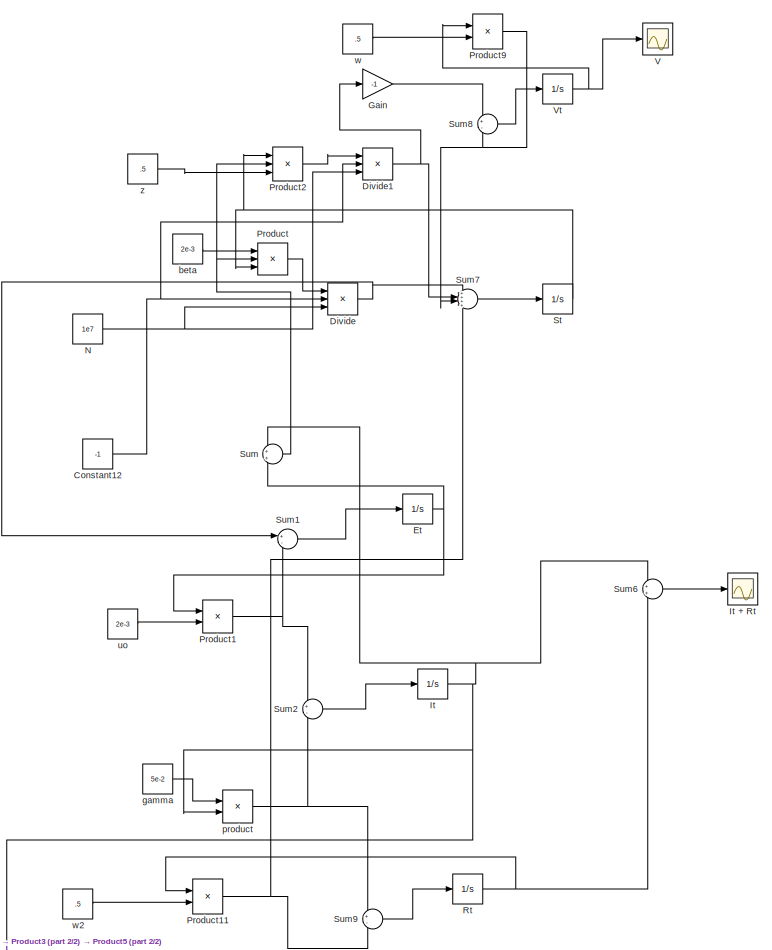
[diagram: root canvas - part 1/2, full width, top band]
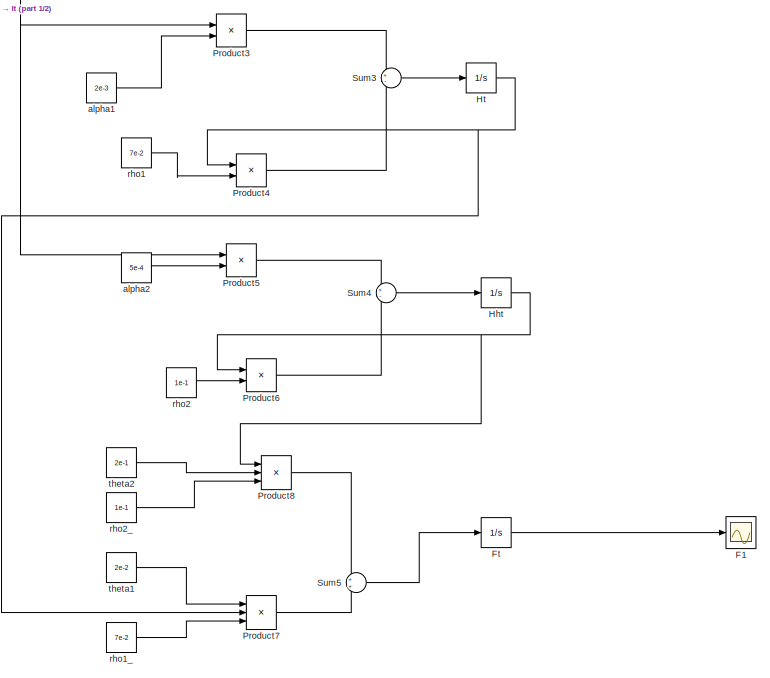
[diagram: root canvas - part 2/2, full width, bottom band]
MODEL slx_adbd907b5ca8
KIND model
CONFIG AbsTol = auto
CONFIG EnableMultiTasking = off
CONFIG FixedStep = auto
CONFIG MaxStep = auto
CONFIG MinStep = auto
CONFIG RelTol = 1e-3
CONFIG SampleTimeConstraint = Unconstrained
CONFIG SolverName = VariableStepAuto
CONFIG StartTime = 0.0
CONFIG StopTime = 30
BLOCK [Constant] Constant12
  Value = -1
BLOCK [Product] Divide
  Inputs = **/
BLOCK [Product] Divide1
  Inputs = **/
BLOCK [Integrator] Et
  InitialCondition = 6e5
BLOCK [Scope] F1
  Floating = off
  NumInputPorts = 1
  ScopeSpecificationString = Simulink.scopes.TimeScopeBlockCfg('CurrentConfiguration', extmgr.ConfigurationSet(extmgr.Configuration('Core','General UI',true,'FigureColor',[1 1 1]),extmgr.Configuration('Core','Source UI',true),extmgr.Configuration('Sources','WiredSimulink',true,'DataLoggingVariableName','ScopeData1'),extmgr.Configuration('Visuals','Time Domain',true,'SerializedDisplays',{struct('MinYLimReal','6484.64879','MaxY...<+1667ch>
BLOCK [Integrator] Ft
  InitialCondition = 6.5e3
BLOCK [Gain] Gain
  Gain = -1
BLOCK [Integrator] Hht
  InitialCondition = 188
BLOCK [Integrator] Ht
  InitialCondition = 7e2
BLOCK [Integrator] It
  InitialCondition = 3e4
BLOCK [Scope] It + Rt
  Floating = off
  NumInputPorts = 1
  ScopeSpecificationString = Simulink.scopes.TimeScopeBlockCfg('CurrentConfiguration', extmgr.ConfigurationSet(extmgr.Configuration('Core','General UI',true,'FigureColor',[1 1 1]),extmgr.Configuration('Core','Source UI',true),extmgr.Configuration('Sources','WiredSimulink',true),extmgr.Configuration('Visuals','Time Domain',true,'SerializedDisplays',{struct('MinYLimReal','255752.47104','MaxYLimReal','298227.76063','YLabelReal',...<+1686ch>
BLOCK [Constant] N
  Value = 1e7
BLOCK [Product] Product
  Inputs = 3
BLOCK [Product] Product1
BLOCK [Product] Product11
BLOCK [Product] Product2
  Inputs = 3
BLOCK [Product] Product3
BLOCK [Product] Product4
BLOCK [Product] Product5
BLOCK [Product] Product6
BLOCK [Product] Product7
  Inputs = 3
BLOCK [Product] Product8
  Inputs = 3
BLOCK [Product] Product9
BLOCK [Integrator] Rt
  InitialCondition = 2.3e5
BLOCK [Integrator] St
  InitialCondition = 9e6
BLOCK [Sum] Sum
BLOCK [Sum] Sum1
  Inputs = +-
BLOCK [Sum] Sum2
  Inputs = +-
BLOCK [Sum] Sum3
  Inputs = +-
BLOCK [Sum] Sum4
  Inputs = +-
BLOCK [Sum] Sum5
BLOCK [Sum] Sum6
BLOCK [Sum] Sum7
  Inputs = ++++
BLOCK [Sum] Sum8
  Inputs = +-
BLOCK [Sum] Sum9
  Inputs = +-
BLOCK [Scope] V
  Floating = off
  NumInputPorts = 1
  ScopeSpecificationString = Simulink.scopes.TimeScopeBlockCfg('CurrentConfiguration', extmgr.ConfigurationSet(extmgr.Configuration('Core','General UI',true,'FigureColor',[1 1 1]),extmgr.Configuration('Core','Source UI',true),extmgr.Configuration('Sources','WiredSimulink',true,'DataLoggingVariableName','ScopeData1'),extmgr.Configuration('Visuals','Time Domain',true,'SerializedDisplays',{struct('MinYLimReal','255752.47104','Ma...<+1725ch>
BLOCK [Integrator] Vt
  InitialCondition = 9e6
BLOCK [Constant] alpha1
  Value = 2e-3
BLOCK [Constant] alpha2
  Value = 5e-4
BLOCK [Constant] beta
  Value = 2e-3
BLOCK [Constant] gamma
  Value = 5e-2
BLOCK [Product] product
BLOCK [Constant] rho1
  Value = 7e-2
BLOCK [Constant] rho1_
  Value = 7e-2
BLOCK [Constant] rho2
  Value = 1e-1
BLOCK [Constant] rho2_
  Value = 1e-1
BLOCK [Constant] theta1
  Value = 2e-2
BLOCK [Constant] theta2
  Value = 2e-1
BLOCK [Constant] uo
  Value = 2e-3
BLOCK [Constant] w
  Value = .5
BLOCK [Constant] w2
  Value = .5
BLOCK [Constant] z
  Value = .5
NET Constant12:1 -> Divide1:2, Divide:2
NET Divide1:1 -> Gain:1, Sum7:2
NET Divide:1 -> Sum1:1, Sum7:1
NET Et:1 -> Product1:1, Sum:2
LINE Ft:1 -> F1:1
LINE Gain:1 -> Sum8:1
NET Hht:1 -> Product6:1, Product8:1
NET Ht:1 -> Product4:1, Product7:2
NET It:1 -> Product3:1, Product5:1, Sum6:1, Sum:1, product:2
NET N:1 -> Divide1:3, Divide:3
NET Product11:1 -> Sum7:4, Sum9:2
NET Product1:1 -> Sum1:2, Sum2:1
LINE Product2:1 -> Divide1:1
LINE Product3:1 -> Sum3:1
LINE Product4:1 -> Sum3:2
LINE Product5:1 -> Sum4:1
LINE Product6:1 -> Sum4:2
LINE Product7:1 -> Sum5:2
LINE Product8:1 -> Sum5:1
NET Product9:1 -> Sum7:3, Sum8:2
LINE Product:1 -> Divide:1
NET Rt:1 -> Product11:1, Sum6:2
NET St:1 -> Product2:1, Product:3
LINE Sum1:1 -> Et:1
LINE Sum2:1 -> It:1
LINE Sum3:1 -> Ht:1
LINE Sum4:1 -> Hht:1
LINE Sum5:1 -> Ft:1
LINE Sum6:1 -> It + Rt:1
LINE Sum7:1 -> St:1
LINE Sum8:1 -> Vt:1
LINE Sum9:1 -> Rt:1
NET Sum:1 -> Product2:2, Product:2
NET Vt:1 -> Product9:1, V:1
LINE alpha1:1 -> Product3:2
LINE alpha2:1 -> Product5:2
LINE beta:1 -> Product:1
LINE gamma:1 -> product:1
NET product:1 -> Sum2:2, Sum9:1
LINE rho1:1 -> Product4:2
LINE rho1_:1 -> Product7:3
LINE rho2:1 -> Product6:2
LINE rho2_:1 -> Product8:3
LINE theta1:1 -> Product7:1
LINE theta2:1 -> Product8:2
LINE uo:1 -> Product1:2
LINE w2:1 -> Product11:2
LINE w:1 -> Product9:2
LINE z:1 -> Product2:3
note: NET lines group one-source signal fan-out (src -> all destinations, sorted); 1:1 wires keep LINE
